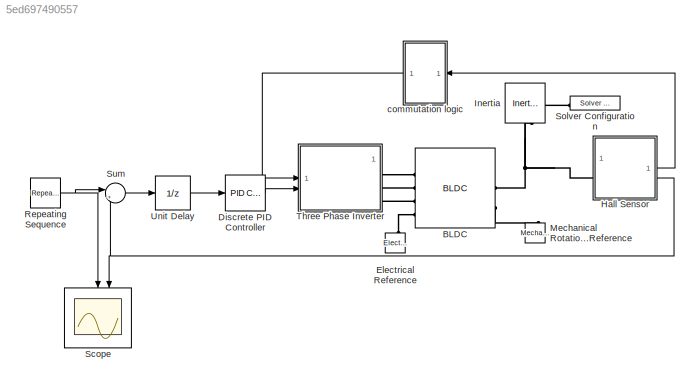
MODEL slx_5ed697490557
KIND model
CONFIG AbsTol = auto
CONFIG EnableMultiTasking = off
CONFIG FixedStep = auto
CONFIG MaxStep = auto
CONFIG MinStep = auto
CONFIG RelTol = 1e-3
CONFIG SampleTimeConstraint = Unconstrained
CONFIG SolverName = VariableStepAuto
CONFIG StartTime = 0.0
CONFIG StopTime = 5
BLOCK [Reference] BLDC  REF=ee_lib/Electromechanical/Permanent Magnet/BLDC
  SourceBlock = ee_lib/Electromechanical/Permanent Magnet/BLDC
  SourceType = BLDC
BLOCK [Reference] Discrete PID Controller  REF=slpidlib/PID Controller
  LibrarySourceBlock = simulink/Discrete/Discrete PID Controller
  SourceBlock = slpidlib/PID Controller
  SourceType = PID 1dof
BLOCK [Reference] Electrical Reference  REF=fl_lib/Electrical/Electrical Elements/Electrical Reference
  NameLocation = right
  SourceBlock = fl_lib/Electrical/Electrical Elements/Electrical Reference
  SourceType = Electrical Reference
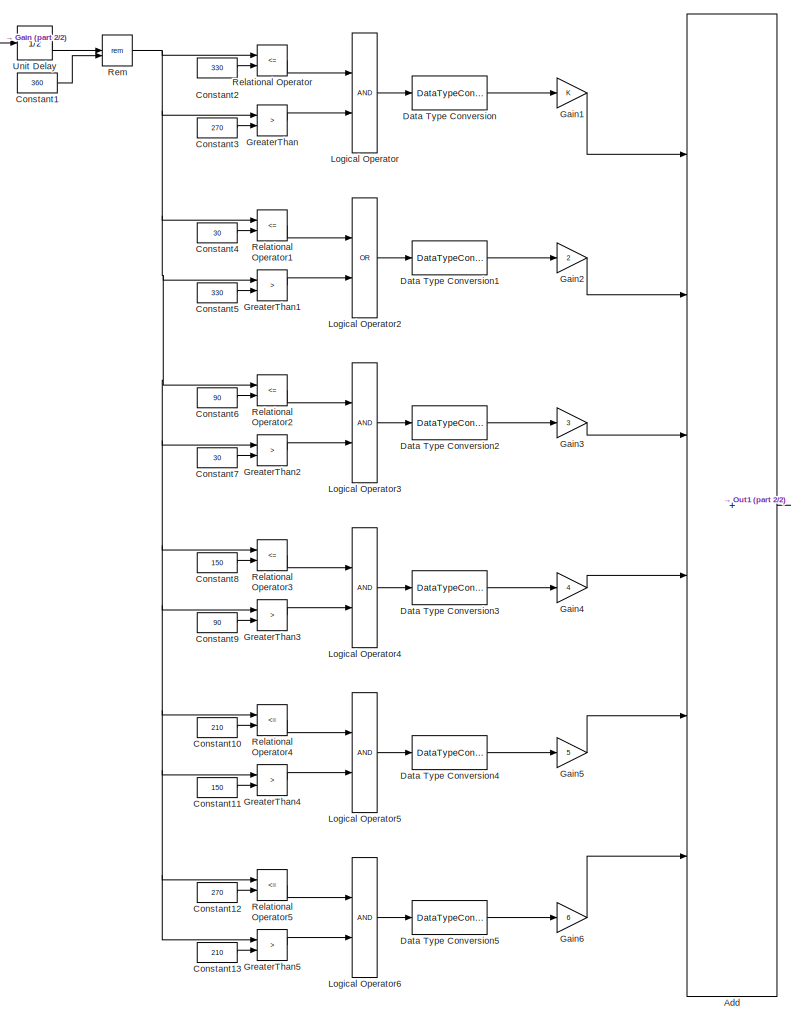
[diagram: Hall Sensor - part 1/2, right side, full height]
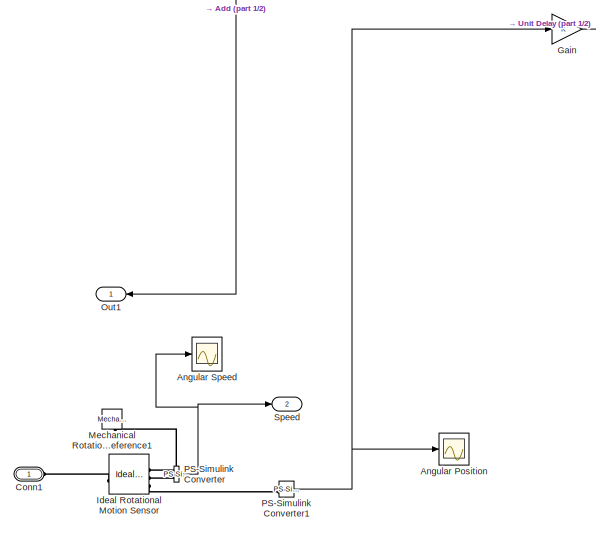
[diagram: Hall Sensor - part 2/2, top left region]
BLOCK [SubSystem] Hall Sensor
BLOCK [Sum] Hall Sensor/Add
  IconShape = rectangular
  Inputs = ++++++
BLOCK [Scope] Hall Sensor/Angular Position
  Floating = off
  NumInputPorts = 1
  ScopeSpecificationString = Simulink.scopes.TimeScopeBlockCfg('CurrentConfiguration', extmgr.ConfigurationSet(extmgr.Configuration('Core','General UI',true),extmgr.Configuration('Core','Source UI',true),extmgr.Configuration('Sources','WiredSimulink',true,'DataLoggingVariableName','ScopeData1'),extmgr.Configuration('Visuals','Time Domain',true,'SerializedDisplays',{struct('MinYLimReal','-467.95932','MaxYLimReal','4211.63387',...<+1399ch>
BLOCK [Scope] Hall Sensor/Angular Speed
  Floating = off
  NumInputPorts = 1
  ScopeSpecificationString = Simulink.scopes.TimeScopeBlockCfg('CurrentConfiguration', extmgr.ConfigurationSet(extmgr.Configuration('Core','General UI',true),extmgr.Configuration('Core','Source UI',true),extmgr.Configuration('Sources','WiredSimulink',true),extmgr.Configuration('Visuals','Time Domain',true,'SerializedDisplays',{struct('MinYLimReal','-187.13352','MaxYLimReal','1684.20171','YLabelReal','','MinYLimMag',' 0.00000'...<+1359ch>
BLOCK [PMIOPort] Hall Sensor/Conn1
  Side = Left
BLOCK [Constant] Hall Sensor/Constant1
  Value = 360
BLOCK [Constant] Hall Sensor/Constant10
  Value = 210
BLOCK [Constant] Hall Sensor/Constant11
  Value = 150
BLOCK [Constant] Hall Sensor/Constant12
  Value = 270
BLOCK [Constant] Hall Sensor/Constant13
  Value = 210
BLOCK [Constant] Hall Sensor/Constant2
  Value = 330
BLOCK [Constant] Hall Sensor/Constant3
  Value = 270
BLOCK [Constant] Hall Sensor/Constant4
  Value = 30
BLOCK [Constant] Hall Sensor/Constant5
  Value = 330
BLOCK [Constant] Hall Sensor/Constant6
  Value = 90
BLOCK [Constant] Hall Sensor/Constant7
  Value = 30
BLOCK [Constant] Hall Sensor/Constant8
  Value = 150
BLOCK [Constant] Hall Sensor/Constant9
  Value = 90
BLOCK [DataTypeConversion] Hall Sensor/Data Type Conversion
  RndMeth = Floor
  SaturateOnIntegerOverflow = off
BLOCK [DataTypeConversion] Hall Sensor/Data Type Conversion1
  RndMeth = Floor
  SaturateOnIntegerOverflow = off
BLOCK [DataTypeConversion] Hall Sensor/Data Type Conversion2
  RndMeth = Floor
  SaturateOnIntegerOverflow = off
BLOCK [DataTypeConversion] Hall Sensor/Data Type Conversion3
  RndMeth = Floor
  SaturateOnIntegerOverflow = off
BLOCK [DataTypeConversion] Hall Sensor/Data Type Conversion4
  RndMeth = Floor
  SaturateOnIntegerOverflow = off
BLOCK [DataTypeConversion] Hall Sensor/Data Type Conversion5
  RndMeth = Floor
  SaturateOnIntegerOverflow = off
BLOCK [Gain] Hall Sensor/Gain
BLOCK [Gain] Hall Sensor/Gain1
BLOCK [Gain] Hall Sensor/Gain2
  Gain = 2
BLOCK [Gain] Hall Sensor/Gain3
  Gain = 3
BLOCK [Gain] Hall Sensor/Gain4
  Gain = 4
BLOCK [Gain] Hall Sensor/Gain5
  Gain = 5
BLOCK [Gain] Hall Sensor/Gain6
  Gain = 6
BLOCK [RelationalOperator] Hall Sensor/GreaterThan
  InputSameDT = off
  Operator = >
  OutDataTypeStr = boolean
  RndMeth = Simplest
BLOCK [RelationalOperator] Hall Sensor/GreaterThan1
  InputSameDT = off
  Operator = >
  OutDataTypeStr = boolean
  RndMeth = Simplest
BLOCK [RelationalOperator] Hall Sensor/GreaterThan2
  InputSameDT = off
  Operator = >
  OutDataTypeStr = boolean
  RndMeth = Simplest
BLOCK [RelationalOperator] Hall Sensor/GreaterThan3
  InputSameDT = off
  Operator = >
  OutDataTypeStr = boolean
  RndMeth = Simplest
BLOCK [RelationalOperator] Hall Sensor/GreaterThan4
  InputSameDT = off
  Operator = >
  OutDataTypeStr = boolean
  RndMeth = Simplest
BLOCK [RelationalOperator] Hall Sensor/GreaterThan5
  InputSameDT = off
  Operator = >
  OutDataTypeStr = boolean
  RndMeth = Simplest
BLOCK [Reference] Hall Sensor/Ideal Rotational Motion Sensor  REF=fl_lib/Mechanical/Mechanical Sensors/Ideal Rotational
Motion Sensor
  SourceBlock = fl_lib/Mechanical/Mechanical Sensors/Ideal Rotational\nMotion Sensor
  SourceType = Ideal Rotational\nMotion Sensor
BLOCK [Logic] Hall Sensor/Logical Operator
  AllPortsSameDT = off
  OutDataTypeStr = boolean
BLOCK [Logic] Hall Sensor/Logical Operator2
  AllPortsSameDT = off
  Operator = OR
  OutDataTypeStr = boolean
BLOCK [Logic] Hall Sensor/Logical Operator3
  AllPortsSameDT = off
  OutDataTypeStr = boolean
BLOCK [Logic] Hall Sensor/Logical Operator4
  AllPortsSameDT = off
  OutDataTypeStr = boolean
BLOCK [Logic] Hall Sensor/Logical Operator5
  AllPortsSameDT = off
  OutDataTypeStr = boolean
BLOCK [Logic] Hall Sensor/Logical Operator6
  AllPortsSameDT = off
  OutDataTypeStr = boolean
BLOCK [Reference] Hall Sensor/Mechanical Rotational Reference1  REF=fl_lib/Mechanical/Rotational Elements/Mechanical
Rotational Reference
  NameLocation = left
  SourceBlock = fl_lib/Mechanical/Rotational Elements/Mechanical\nRotational Reference
  SourceType = Mechanical\nRotational Reference
BLOCK [Outport] Hall Sensor/Out1
BLOCK [Reference] Hall Sensor/PS-Simulink Converter  REF=nesl_utility/PS-Simulink
Converter
  SourceBlock = nesl_utility/PS-Simulink\nConverter
  SourceType = PS-Simulink\nConverter
BLOCK [Reference] Hall Sensor/PS-Simulink Converter1  REF=nesl_utility/PS-Simulink
Converter
  SourceBlock = nesl_utility/PS-Simulink\nConverter
  SourceType = PS-Simulink\nConverter
BLOCK [RelationalOperator] Hall Sensor/Relational Operator
  InputSameDT = off
  Operator = <=
  OutDataTypeStr = boolean
  RndMeth = Simplest
BLOCK [RelationalOperator] Hall Sensor/Relational Operator1
  InputSameDT = off
  Operator = <=
  OutDataTypeStr = boolean
  RndMeth = Simplest
BLOCK [RelationalOperator] Hall Sensor/Relational Operator2
  InputSameDT = off
  Operator = <=
  OutDataTypeStr = boolean
  RndMeth = Simplest
BLOCK [RelationalOperator] Hall Sensor/Relational Operator3
  InputSameDT = off
  Operator = <=
  OutDataTypeStr = boolean
  RndMeth = Simplest
BLOCK [RelationalOperator] Hall Sensor/Relational Operator4
  InputSameDT = off
  Operator = <=
  OutDataTypeStr = boolean
  RndMeth = Simplest
BLOCK [RelationalOperator] Hall Sensor/Relational Operator5
  InputSameDT = off
  Operator = <=
  OutDataTypeStr = boolean
  RndMeth = Simplest
BLOCK [Math] Hall Sensor/Rem
  Operator = rem
BLOCK [Outport] Hall Sensor/Speed
  NameLocation = top
  Port = 2
BLOCK [UnitDelay] Hall Sensor/Unit Delay
  HasFrameUpgradeWarning = on
  SampleTime = -1
BLOCK [Reference] Inertia  REF=fl_lib/Mechanical/Rotational Elements/Inertia
  NameLocation = left
  SourceBlock = fl_lib/Mechanical/Rotational Elements/Inertia
  SourceType = Inertia
BLOCK [Reference] Mechanical Rotational Reference  REF=fl_lib/Mechanical/Rotational Elements/Mechanical
Rotational Reference
  NameLocation = right
  SourceBlock = fl_lib/Mechanical/Rotational Elements/Mechanical\nRotational Reference
  SourceType = Mechanical\nRotational Reference
BLOCK [Reference] Repeating Sequence  REF=simulink/Sources/Repeating
Sequence
  SourceBlock = simulink/Sources/Repeating\nSequence
  SourceType = Repeating table
BLOCK [Scope] Scope
  Floating = off
  NameLocation = left
  NumInputPorts = 2
  ScopeSpecificationString = Simulink.scopes.TimeScopeBlockCfg('CurrentConfiguration', extmgr.ConfigurationSet(extmgr.Configuration('Core','General UI',true),extmgr.Configuration('Core','Source UI',true),extmgr.Configuration('Sources','WiredSimulink',true),extmgr.Configuration('Visuals','Time Domain',true,'SerializedDisplays',{struct('MinYLimReal','-187.4375','MaxYLimReal','1686.9375','YLabelReal','','MinYLimMag',' 0.00000','...<+1412ch>
BLOCK [Reference] Solver Configuration  REF=nesl_utility/Solver
Configuration
  NameLocation = top
  SourceBlock = nesl_utility/Solver\nConfiguration
  SourceType = Solver\nConfiguration
BLOCK [Sum] Sum
  Inputs = |+-
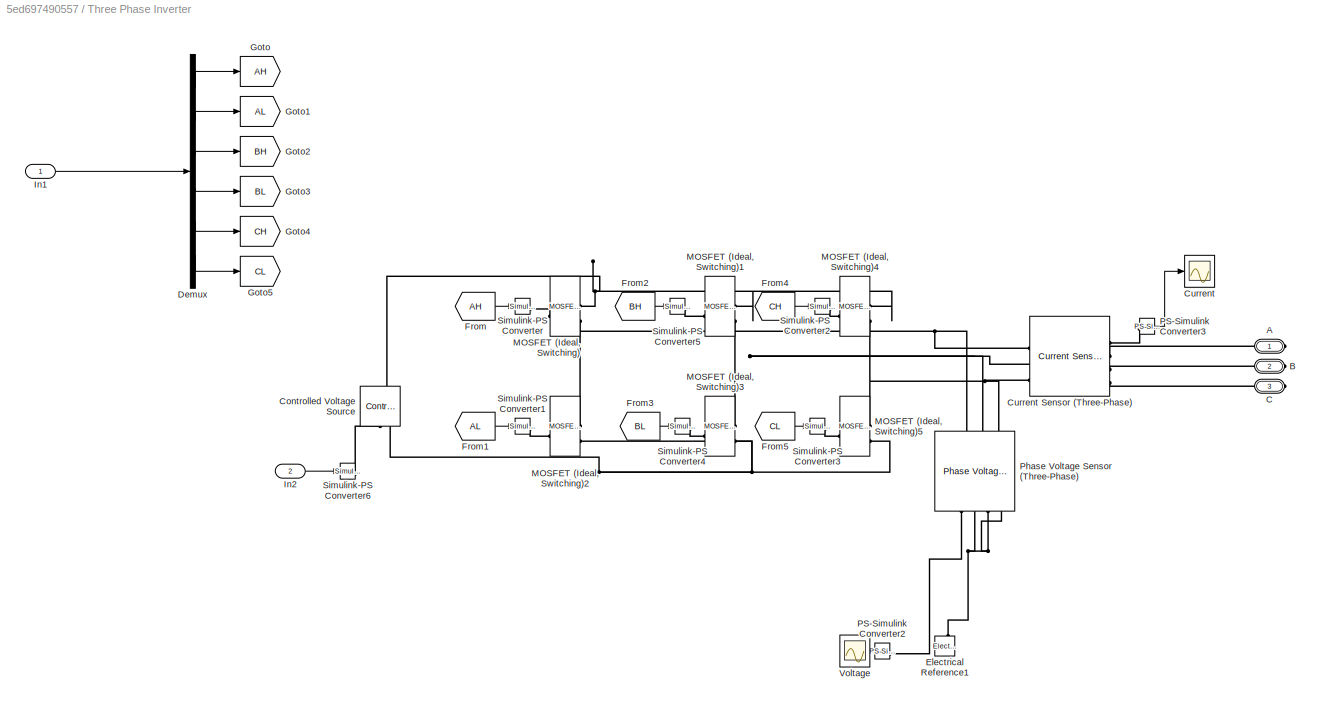
BLOCK [SubSystem] Three Phase Inverter
BLOCK [PMIOPort] Three Phase Inverter/A
  Side = Right
BLOCK [PMIOPort] Three Phase Inverter/B
  Port = 2
  Side = Right
BLOCK [PMIOPort] Three Phase Inverter/C
  Port = 3
  Side = Right
BLOCK [Reference] Three Phase Inverter/Controlled Voltage Source  REF=fl_lib/Electrical/Electrical Sources/Controlled Voltage
Source
  NameLocation = right
  SourceBlock = fl_lib/Electrical/Electrical Sources/Controlled Voltage\nSource
  SourceType = Controlled Voltage\nSource
BLOCK [Scope] Three Phase Inverter/Current
  Floating = off
  NumInputPorts = 1
  ScopeSpecificationString = Simulink.scopes.TimeScopeBlockCfg('CurrentConfiguration', extmgr.ConfigurationSet(extmgr.Configuration('Core','General UI',true),extmgr.Configuration('Core','Source UI',true),extmgr.Configuration('Sources','WiredSimulink',true,'DataLoggingVariableName','ScopeData2'),extmgr.Configuration('Visuals','Time Domain',true,'SerializedDisplays',{struct('MinYLimReal','-228.48955','MaxYLimReal','228.4895','Y...<+1468ch>
BLOCK [Reference] Three Phase Inverter/Current Sensor (Three-Phase)  REF=ee_lib/Sensors &
Transducers/Current Sensor
(Three-Phase)
  SourceBlock = ee_lib/Sensors &\nTransducers/Current Sensor\n(Three-Phase)
  SourceType = Current Sensor\n(Three-Phase)
BLOCK [Demux] Three Phase Inverter/Demux
  Outputs = 6
BLOCK [Reference] Three Phase Inverter/Electrical Reference1  REF=fl_lib/Electrical/Electrical Elements/Electrical Reference
  NameLocation = right
  SourceBlock = fl_lib/Electrical/Electrical Elements/Electrical Reference
  SourceType = Electrical Reference
BLOCK [From] Three Phase Inverter/From
  GotoTag = AH
BLOCK [From] Three Phase Inverter/From1
  GotoTag = AL
BLOCK [From] Three Phase Inverter/From2
  GotoTag = BH
BLOCK [From] Three Phase Inverter/From3
  GotoTag = BL
BLOCK [From] Three Phase Inverter/From4
  GotoTag = CH
BLOCK [From] Three Phase Inverter/From5
  GotoTag = CL
BLOCK [Goto] Three Phase Inverter/Goto
  GotoTag = AH
BLOCK [Goto] Three Phase Inverter/Goto1
  GotoTag = AL
BLOCK [Goto] Three Phase Inverter/Goto2
  GotoTag = BH
BLOCK [Goto] Three Phase Inverter/Goto3
  GotoTag = BL
BLOCK [Goto] Three Phase Inverter/Goto4
  GotoTag = CH
BLOCK [Goto] Three Phase Inverter/Goto5
  GotoTag = CL
BLOCK [Inport] Three Phase Inverter/In1
BLOCK [Inport] Three Phase Inverter/In2
  Port = 2
BLOCK [Reference] Three Phase Inverter/MOSFET (Ideal, Switching)  REF=ee_lib/Semiconductors &
Converters/MOSFET
(Ideal,
Switching)
  SourceBlock = ee_lib/Semiconductors &\nConverters/MOSFET\n(Ideal,\nSwitching)
  SourceType = MOSFET\n(Ideal,\nSwitching)
BLOCK [Reference] Three Phase Inverter/MOSFET (Ideal, Switching)1  REF=ee_lib/Semiconductors &
Converters/MOSFET
(Ideal,
Switching)
  SourceBlock = ee_lib/Semiconductors &\nConverters/MOSFET\n(Ideal,\nSwitching)
  SourceType = MOSFET\n(Ideal,\nSwitching)
BLOCK [Reference] Three Phase Inverter/MOSFET (Ideal, Switching)2  REF=ee_lib/Semiconductors &
Converters/MOSFET
(Ideal,
Switching)
  SourceBlock = ee_lib/Semiconductors &\nConverters/MOSFET\n(Ideal,\nSwitching)
  SourceType = MOSFET\n(Ideal,\nSwitching)
BLOCK [Reference] Three Phase Inverter/MOSFET (Ideal, Switching)3  REF=ee_lib/Semiconductors &
Converters/MOSFET
(Ideal,
Switching)
  SourceBlock = ee_lib/Semiconductors &\nConverters/MOSFET\n(Ideal,\nSwitching)
  SourceType = MOSFET\n(Ideal,\nSwitching)
BLOCK [Reference] Three Phase Inverter/MOSFET (Ideal, Switching)4  REF=ee_lib/Semiconductors &
Converters/MOSFET
(Ideal,
Switching)
  SourceBlock = ee_lib/Semiconductors &\nConverters/MOSFET\n(Ideal,\nSwitching)
  SourceType = MOSFET\n(Ideal,\nSwitching)
BLOCK [Reference] Three Phase Inverter/MOSFET (Ideal, Switching)5  REF=ee_lib/Semiconductors &
Converters/MOSFET
(Ideal,
Switching)
  SourceBlock = ee_lib/Semiconductors &\nConverters/MOSFET\n(Ideal,\nSwitching)
  SourceType = MOSFET\n(Ideal,\nSwitching)
BLOCK [Reference] Three Phase Inverter/PS-Simulink Converter2  REF=nesl_utility/PS-Simulink
Converter
  NameLocation = top
  SourceBlock = nesl_utility/PS-Simulink\nConverter
  SourceType = PS-Simulink\nConverter
BLOCK [Reference] Three Phase Inverter/PS-Simulink Converter3  REF=nesl_utility/PS-Simulink
Converter
  SourceBlock = nesl_utility/PS-Simulink\nConverter
  SourceType = PS-Simulink\nConverter
BLOCK [Reference] Three Phase Inverter/Phase Voltage Sensor (Three-Phase)  REF=ee_lib/Sensors &
Transducers/Phase Voltage Sensor
(Three-Phase)
  NameLocation = right
  SourceBlock = ee_lib/Sensors &\nTransducers/Phase Voltage Sensor\n(Three-Phase)
  SourceType = Phase Voltage Sensor\n(Three-Phase)
BLOCK [Reference] Three Phase Inverter/Simulink-PS Converter  REF=nesl_utility/Simulink-PS
Converter
  SourceBlock = nesl_utility/Simulink-PS\nConverter
  SourceType = Simulink-PS\nConverter
BLOCK [Reference] Three Phase Inverter/Simulink-PS Converter1  REF=nesl_utility/Simulink-PS
Converter
  SourceBlock = nesl_utility/Simulink-PS\nConverter
  SourceType = Simulink-PS\nConverter
BLOCK [Reference] Three Phase Inverter/Simulink-PS Converter2  REF=nesl_utility/Simulink-PS
Converter
  SourceBlock = nesl_utility/Simulink-PS\nConverter
  SourceType = Simulink-PS\nConverter
BLOCK [Reference] Three Phase Inverter/Simulink-PS Converter3  REF=nesl_utility/Simulink-PS
Converter
  SourceBlock = nesl_utility/Simulink-PS\nConverter
  SourceType = Simulink-PS\nConverter
BLOCK [Reference] Three Phase Inverter/Simulink-PS Converter4  REF=nesl_utility/Simulink-PS
Converter
  SourceBlock = nesl_utility/Simulink-PS\nConverter
  SourceType = Simulink-PS\nConverter
BLOCK [Reference] Three Phase Inverter/Simulink-PS Converter5  REF=nesl_utility/Simulink-PS
Converter
  SourceBlock = nesl_utility/Simulink-PS\nConverter
  SourceType = Simulink-PS\nConverter
BLOCK [Reference] Three Phase Inverter/Simulink-PS Converter6  REF=nesl_utility/Simulink-PS
Converter
  SourceBlock = nesl_utility/Simulink-PS\nConverter
  SourceType = Simulink-PS\nConverter
BLOCK [Scope] Three Phase Inverter/Voltage
  Floating = off
  NameLocation = top
  NumInputPorts = 1
  ScopeSpecificationString = Simulink.scopes.TimeScopeBlockCfg('CurrentConfiguration', extmgr.ConfigurationSet(extmgr.Configuration('Core','General UI',true),extmgr.Configuration('Core','Source UI',true),extmgr.Configuration('Sources','WiredSimulink',true,'DataLoggingVariableName','ScopeData1'),extmgr.Configuration('Visuals','Time Domain',true,'SerializedDisplays',{struct('MinYLimReal','-145.46297','MaxYLimReal','119.58736','...<+1468ch>
BLOCK [UnitDelay] Unit Delay
  HasFrameUpgradeWarning = on
  SampleTime = -1
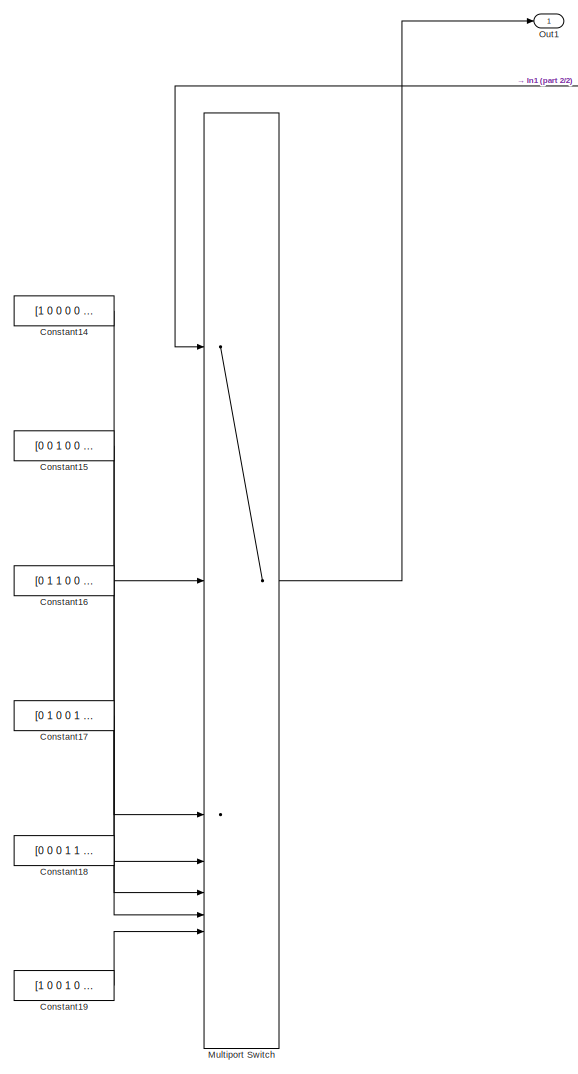
[diagram: commutation logic - part 1/2, left side, full height]
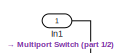
[diagram: commutation logic - part 2/2, top right region]
BLOCK [SubSystem] commutation logic
  NameLocation = top
BLOCK [Constant] commutation logic/Constant14
  Value = [1 0 0 0 0 1]
BLOCK [Constant] commutation logic/Constant15
  Value = [0 0 1 0 0 1]
BLOCK [Constant] commutation logic/Constant16
  Value = [0 1 1 0 0 0]
BLOCK [Constant] commutation logic/Constant17
  Value = [0 1 0 0 1 0]
BLOCK [Constant] commutation logic/Constant18
  Value = [0 0 0 1 1 0]
BLOCK [Constant] commutation logic/Constant19
  Value = [1 0 0 1 0 0]
BLOCK [Inport] commutation logic/In1
BLOCK [MultiPortSwitch] commutation logic/Multiport Switch
  InputSameDT = off
  Inputs = 6
  SaturateOnIntegerOverflow = off
BLOCK [Outport] commutation logic/Out1
LINE Discrete PID Controller:1 -> Three Phase Inverter:2
LINE Hall Sensor/Add:1 -> Hall Sensor/Out1:1
LINE Hall Sensor/Constant10:1 -> Hall Sensor/Relational Operator4:2
LINE Hall Sensor/Constant11:1 -> Hall Sensor/GreaterThan4:2
LINE Hall Sensor/Constant12:1 -> Hall Sensor/Relational Operator5:2
LINE Hall Sensor/Constant13:1 -> Hall Sensor/GreaterThan5:2
LINE Hall Sensor/Constant1:1 -> Hall Sensor/Rem:2
LINE Hall Sensor/Constant2:1 -> Hall Sensor/Relational Operator:2
LINE Hall Sensor/Constant3:1 -> Hall Sensor/GreaterThan:2
LINE Hall Sensor/Constant4:1 -> Hall Sensor/Relational Operator1:2
LINE Hall Sensor/Constant5:1 -> Hall Sensor/GreaterThan1:2
LINE Hall Sensor/Constant6:1 -> Hall Sensor/Relational Operator2:2
LINE Hall Sensor/Constant7:1 -> Hall Sensor/GreaterThan2:2
LINE Hall Sensor/Constant8:1 -> Hall Sensor/Relational Operator3:2
LINE Hall Sensor/Constant9:1 -> Hall Sensor/GreaterThan3:2
LINE Hall Sensor/Data Type Conversion1:1 -> Hall Sensor/Gain2:1
LINE Hall Sensor/Data Type Conversion2:1 -> Hall Sensor/Gain3:1
LINE Hall Sensor/Data Type Conversion3:1 -> Hall Sensor/Gain4:1
LINE Hall Sensor/Data Type Conversion4:1 -> Hall Sensor/Gain5:1
LINE Hall Sensor/Data Type Conversion5:1 -> Hall Sensor/Gain6:1
LINE Hall Sensor/Data Type Conversion:1 -> Hall Sensor/Gain1:1
LINE Hall Sensor/Gain1:1 -> Hall Sensor/Add:1
LINE Hall Sensor/Gain2:1 -> Hall Sensor/Add:2
LINE Hall Sensor/Gain3:1 -> Hall Sensor/Add:3
LINE Hall Sensor/Gain4:1 -> Hall Sensor/Add:4
LINE Hall Sensor/Gain5:1 -> Hall Sensor/Add:5
LINE Hall Sensor/Gain6:1 -> Hall Sensor/Add:6
LINE Hall Sensor/Gain:1 -> Hall Sensor/Unit Delay:1
LINE Hall Sensor/GreaterThan1:1 -> Hall Sensor/Logical Operator2:2
LINE Hall Sensor/GreaterThan2:1 -> Hall Sensor/Logical Operator3:2
LINE Hall Sensor/GreaterThan3:1 -> Hall Sensor/Logical Operator4:2
LINE Hall Sensor/GreaterThan4:1 -> Hall Sensor/Logical Operator5:2
LINE Hall Sensor/GreaterThan5:1 -> Hall Sensor/Logical Operator6:2
LINE Hall Sensor/GreaterThan:1 -> Hall Sensor/Logical Operator:2
LINE Hall Sensor/Logical Operator2:1 -> Hall Sensor/Data Type Conversion1:1
LINE Hall Sensor/Logical Operator3:1 -> Hall Sensor/Data Type Conversion2:1
LINE Hall Sensor/Logical Operator4:1 -> Hall Sensor/Data Type Conversion3:1
LINE Hall Sensor/Logical Operator5:1 -> Hall Sensor/Data Type Conversion4:1
LINE Hall Sensor/Logical Operator6:1 -> Hall Sensor/Data Type Conversion5:1
LINE Hall Sensor/Logical Operator:1 -> Hall Sensor/Data Type Conversion:1
NET Hall Sensor/PS-Simulink Converter1:1 -> Hall Sensor/Angular Position:1, Hall Sensor/Gain:1
NET Hall Sensor/PS-Simulink Converter:1 -> Hall Sensor/Angular Speed:1, Hall Sensor/Speed:1
LINE Hall Sensor/Relational Operator1:1 -> Hall Sensor/Logical Operator2:1
LINE Hall Sensor/Relational Operator2:1 -> Hall Sensor/Logical Operator3:1
LINE Hall Sensor/Relational Operator3:1 -> Hall Sensor/Logical Operator4:1
LINE Hall Sensor/Relational Operator4:1 -> Hall Sensor/Logical Operator5:1
LINE Hall Sensor/Relational Operator5:1 -> Hall Sensor/Logical Operator6:1
LINE Hall Sensor/Relational Operator:1 -> Hall Sensor/Logical Operator:1
NET Hall Sensor/Rem:1 -> Hall Sensor/GreaterThan1:1, Hall Sensor/GreaterThan2:1, Hall Sensor/GreaterThan3:1, Hall Sensor/GreaterThan4:1, Hall Sensor/GreaterThan5:1, Hall Sensor/GreaterThan:1, Hall Sensor/Relational Operator1:1, Hall Sensor/Relational Operator2:1, Hall Sensor/Relational Operator3:1, Hall Sensor/Relational Operator4:1, Hall Sensor/Relational Operator5:1, Hall Sensor/Relational Operator:1
LINE Hall Sensor/Unit Delay:1 -> Hall Sensor/Rem:1
LINE Hall Sensor:1 -> commutation logic:1
NET Hall Sensor:2 -> Scope:2, Sum:2
NET Repeating Sequence:1 -> Scope:1, Sum:1
LINE Sum:1 -> Unit Delay:1
LINE Three Phase Inverter/Demux:1 -> Three Phase Inverter/Goto:1
LINE Three Phase Inverter/Demux:2 -> Three Phase Inverter/Goto1:1
LINE Three Phase Inverter/Demux:3 -> Three Phase Inverter/Goto2:1
LINE Three Phase Inverter/Demux:4 -> Three Phase Inverter/Goto3:1
LINE Three Phase Inverter/Demux:5 -> Three Phase Inverter/Goto4:1
LINE Three Phase Inverter/Demux:6 -> Three Phase Inverter/Goto5:1
LINE Three Phase Inverter/From1:1 -> Three Phase Inverter/Simulink-PS Converter1:1
LINE Three Phase Inverter/From2:1 -> Three Phase Inverter/Simulink-PS Converter5:1
LINE Three Phase Inverter/From3:1 -> Three Phase Inverter/Simulink-PS Converter4:1
LINE Three Phase Inverter/From4:1 -> Three Phase Inverter/Simulink-PS Converter2:1
LINE Three Phase Inverter/From5:1 -> Three Phase Inverter/Simulink-PS Converter3:1
LINE Three Phase Inverter/From:1 -> Three Phase Inverter/Simulink-PS Converter:1
LINE Three Phase Inverter/In1:1 -> Three Phase Inverter/Demux:1
LINE Three Phase Inverter/In2:1 -> Three Phase Inverter/Simulink-PS Converter6:1
LINE Three Phase Inverter/PS-Simulink Converter2:1 -> Three Phase Inverter/Voltage:1
LINE Three Phase Inverter/PS-Simulink Converter3:1 -> Three Phase Inverter/Current:1
LINE Unit Delay:1 -> Discrete PID Controller:1
LINE commutation logic/Constant14:1 -> commutation logic/Multiport Switch:2
LINE commutation logic/Constant15:1 -> commutation logic/Multiport Switch:3
LINE commutation logic/Constant16:1 -> commutation logic/Multiport Switch:4
LINE commutation logic/Constant17:1 -> commutation logic/Multiport Switch:5
LINE commutation logic/Constant18:1 -> commutation logic/Multiport Switch:6
LINE commutation logic/Constant19:1 -> commutation logic/Multiport Switch:7
LINE commutation logic/In1:1 -> commutation logic/Multiport Switch:1
LINE commutation logic/Multiport Switch:1 -> commutation logic/Out1:1
LINE commutation logic:1 -> Three Phase Inverter:1
PLINE BLDC:LConn1 -- Three Phase Inverter:RConn1
PLINE BLDC:LConn2 -- Three Phase Inverter:RConn2
PLINE BLDC:LConn3 -- Three Phase Inverter:RConn3
PLINE BLDC:LConn4 -- Electrical Reference:LConn1
PNET net1: BLDC:RConn1 -- Hall Sensor:LConn1 -- Inertia:LConn1 -- Solver Configuration:RConn1
PLINE BLDC:RConn2 -- Mechanical Rotational Reference:LConn1
PLINE Hall Sensor/Conn1:RConn1 -- Hall Sensor/Ideal Rotational Motion Sensor:LConn1
PLINE Hall Sensor/Ideal Rotational Motion Sensor:RConn1 -- Hall Sensor/Mechanical Rotational Reference1:LConn1
PLINE Hall Sensor/Ideal Rotational Motion Sensor:RConn2 -- Hall Sensor/PS-Simulink Converter:LConn1
PLINE Hall Sensor/Ideal Rotational Motion Sensor:RConn3 -- Hall Sensor/PS-Simulink Converter1:LConn1
PLINE Three Phase Inverter/A:RConn1 -- Three Phase Inverter/Current Sensor (Three-Phase):RConn2
PLINE Three Phase Inverter/B:RConn1 -- Three Phase Inverter/Current Sensor (Three-Phase):RConn3
PLINE Three Phase Inverter/C:RConn1 -- Three Phase Inverter/Current Sensor (Three-Phase):RConn4
PNET net2: Three Phase Inverter/Controlled Voltage Source:LConn1 -- Three Phase Inverter/MOSFET (Ideal, Switching)1:RConn1 -- Three Phase Inverter/MOSFET (Ideal, Switching)4:RConn1 -- Three Phase Inverter/MOSFET (Ideal, Switching):RConn1
PLINE Three Phase Inverter/Controlled Voltage Source:RConn1 -- Three Phase Inverter/Simulink-PS Converter6:RConn1
PNET net3: Three Phase Inverter/Controlled Voltage Source:RConn2 -- Three Phase Inverter/MOSFET (Ideal, Switching)2:RConn2 -- Three Phase Inverter/MOSFET (Ideal, Switching)3:RConn2 -- Three Phase Inverter/MOSFET (Ideal, Switching)5:RConn2
PNET net4: Three Phase Inverter/Current Sensor (Three-Phase):LConn1 -- Three Phase Inverter/MOSFET (Ideal, Switching)2:RConn1 -- Three Phase Inverter/MOSFET (Ideal, Switching):RConn2 -- Three Phase Inverter/Phase Voltage Sensor (Three-Phase):LConn1
PNET net5: Three Phase Inverter/Current Sensor (Three-Phase):LConn2 -- Three Phase Inverter/MOSFET (Ideal, Switching)1:RConn2 -- Three Phase Inverter/MOSFET (Ideal, Switching)3:RConn1 -- Three Phase Inverter/Phase Voltage Sensor (Three-Phase):LConn2
PNET net6: Three Phase Inverter/Current Sensor (Three-Phase):LConn3 -- Three Phase Inverter/MOSFET (Ideal, Switching)4:RConn2 -- Three Phase Inverter/MOSFET (Ideal, Switching)5:RConn1 -- Three Phase Inverter/Phase Voltage Sensor (Three-Phase):LConn3
PLINE Three Phase Inverter/Current Sensor (Three-Phase):RConn1 -- Three Phase Inverter/PS-Simulink Converter3:LConn1
PNET net7: Three Phase Inverter/Electrical Reference1:LConn1 -- Three Phase Inverter/Phase Voltage Sensor (Three-Phase):RConn2 -- Three Phase Inverter/Phase Voltage Sensor (Three-Phase):RConn3 -- Three Phase Inverter/Phase Voltage Sensor (Three-Phase):RConn4
PLINE Three Phase Inverter/MOSFET (Ideal, Switching)1:LConn1 -- Three Phase Inverter/Simulink-PS Converter5:RConn1
PLINE Three Phase Inverter/MOSFET (Ideal, Switching)2:LConn1 -- Three Phase Inverter/Simulink-PS Converter1:RConn1
PLINE Three Phase Inverter/MOSFET (Ideal, Switching)3:LConn1 -- Three Phase Inverter/Simulink-PS Converter4:RConn1
PLINE Three Phase Inverter/MOSFET (Ideal, Switching)4:LConn1 -- Three Phase Inverter/Simulink-PS Converter2:RConn1
PLINE Three Phase Inverter/MOSFET (Ideal, Switching)5:LConn1 -- Three Phase Inverter/Simulink-PS Converter3:RConn1
PLINE Three Phase Inverter/MOSFET (Ideal, Switching):LConn1 -- Three Phase Inverter/Simulink-PS Converter:RConn1
PLINE Three Phase Inverter/PS-Simulink Converter2:LConn1 -- Three Phase Inverter/Phase Voltage Sensor (Three-Phase):RConn1
note: NET lines group one-source signal fan-out (src -> all destinations, sorted); 1:1 wires keep LINE; PNET lines group multi-terminal physical nets as a canonical sorted terminal list (undirected conserving connections); 2-terminal nets keep the pairwise PLINE form
